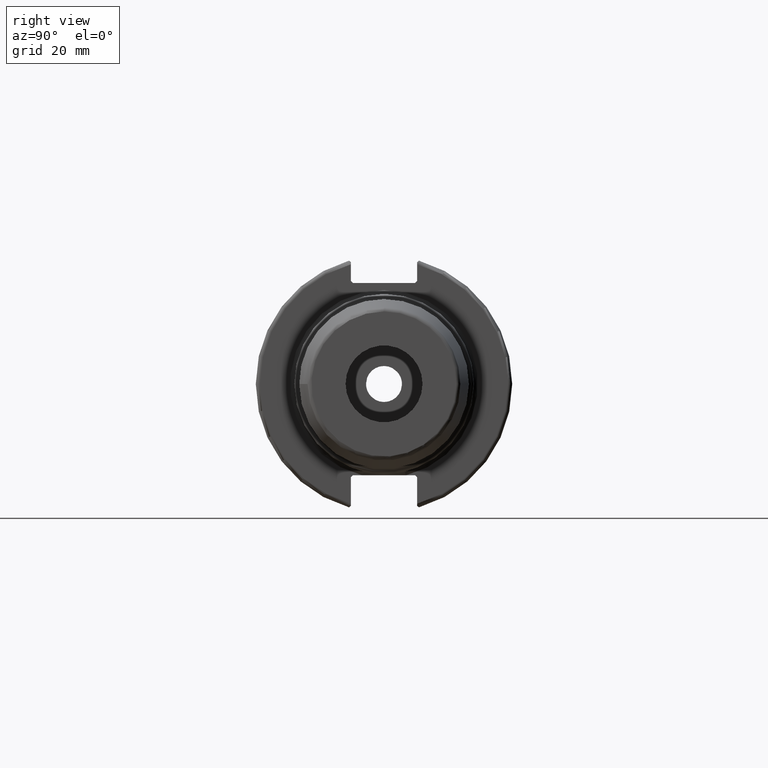
[diagram: clean part render]
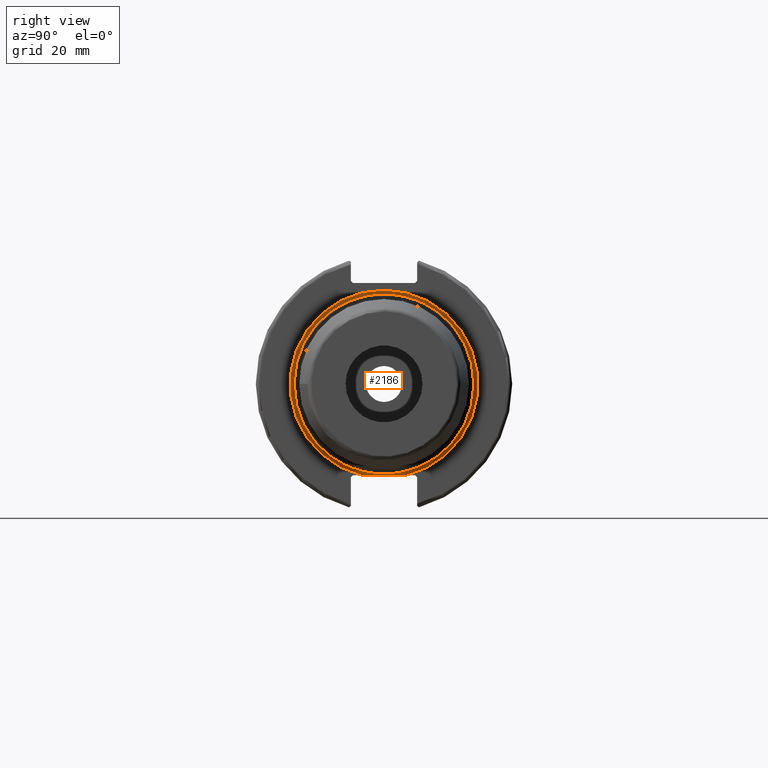
[diagram: same view with one face highlighted and labeled with its STEP entity id]
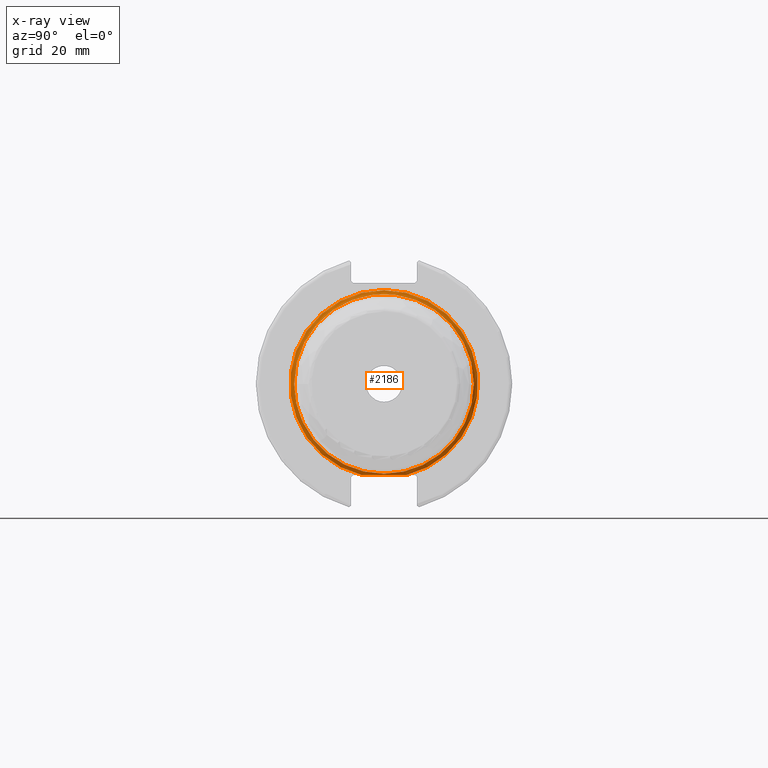
[diagram: x-ray of the same camera — body ghosted, the highlighted face saturated]
A machine part, right view. The second image highlights one B-rep face of the part: STEP entity #2186.
The next image is the same camera in x-ray: the body ghosted, the highlighted face saturated — about 0% of this face is hidden behind the body in this view.
In plain terms, the highlighted toroidal blend (fillet) surface has major radius 23.25 mm and minor (blend) radius 1 mm.
Its self-contained STEP definition (entity closure, byte-faithful):
#99=TOROIDAL_SURFACE('',#2399,23.25,1.);
#146=B_SPLINE_CURVE_WITH_KNOTS('',3,(#3604,#3605,#3606,#3607,#3608,#3609),
 .UNSPECIFIED.,.F.,.F.,(4,2,4),(1.72596271882624,2.07497455326111,2.23850423752741),
 .UNSPECIFIED.);
#147=B_SPLINE_CURVE_WITH_KNOTS('',3,(#3612,#3613,#3614,#3615,#3616,#3617),
 .UNSPECIFIED.,.F.,.F.,(4,2,4),(1.21342120012506,1.37695088439136,1.72596271882624),
 .UNSPECIFIED.);
#200=FACE_OUTER_BOUND('',#312,.T.);
#312=EDGE_LOOP('',(#1603,#1604,#1605,#1606,#1607,#1608,#1609,#1610));
#701=CIRCLE('',#2396,22.25);
#702=CIRCLE('',#2397,22.25);
#703=CIRCLE('',#2398,22.25);
#704=CIRCLE('',#2400,1.);
#705=CIRCLE('',#2401,23.25);
#877=VERTEX_POINT('',#3593);
#878=VERTEX_POINT('',#3595);
#879=VERTEX_POINT('',#3597);
#880=VERTEX_POINT('',#3601);
#881=VERTEX_POINT('',#3603);
#882=VERTEX_POINT('',#3610);
#1155=EDGE_CURVE('',#878,#877,#701,.T.);
#1156=EDGE_CURVE('',#879,#878,#702,.T.);
#1157=EDGE_CURVE('',#877,#879,#703,.T.);
#1158=EDGE_CURVE('',#878,#880,#704,.T.);
#1159=EDGE_CURVE('',#881,#880,#146,.F.);
#1160=EDGE_CURVE('',#881,#882,#705,.T.);
#1161=EDGE_CURVE('',#880,#882,#147,.F.);
#1603=ORIENTED_EDGE('',*,*,#1156,.T.);
#1604=ORIENTED_EDGE('',*,*,#1158,.T.);
#1605=ORIENTED_EDGE('',*,*,#1159,.F.);
#1606=ORIENTED_EDGE('',*,*,#1160,.T.);
#1607=ORIENTED_EDGE('',*,*,#1161,.F.);
#1608=ORIENTED_EDGE('',*,*,#1158,.F.);
#1609=ORIENTED_EDGE('',*,*,#1155,.T.);
#1610=ORIENTED_EDGE('',*,*,#1157,.T.);
#2186=ADVANCED_FACE('',(#200),#99,.F.);
#2396=AXIS2_PLACEMENT_3D('',#3596,#2826,#2827);
#2397=AXIS2_PLACEMENT_3D('',#3598,#2828,#2829);
#2398=AXIS2_PLACEMENT_3D('',#3599,#2830,#2831);
#2399=AXIS2_PLACEMENT_3D('',#3600,#2832,#2833);
#2400=AXIS2_PLACEMENT_3D('',#3602,#2834,#2835);
#2401=AXIS2_PLACEMENT_3D('',#3611,#2836,#2837);
#2826=DIRECTION('center_axis',(-1.,0.,0.));
#2827=DIRECTION('ref_axis',(0.,-1.,-1.22464679914735E-16));
#2828=DIRECTION('center_axis',(-1.,0.,0.));
#2829=DIRECTION('ref_axis',(0.,-1.,-1.22464679914735E-16));
#2830=DIRECTION('center_axis',(-1.,0.,0.));
#2831=DIRECTION('ref_axis',(0.,-1.,-1.22464679914735E-16));
#2832=DIRECTION('center_axis',(-1.,0.,0.));
#2833=DIRECTION('ref_axis',(0.,0.,1.));
#2834=DIRECTION('center_axis',(0.,-1.,1.22464679914735E-16));
#2835=DIRECTION('ref_axis',(0.,-1.22464679914735E-16,-1.));
#2836=DIRECTION('center_axis',(1.,0.,0.));
#2837=DIRECTION('ref_axis',(0.,-1.,-1.22464679914735E-16));
#3593=CARTESIAN_POINT('',(20.05,-22.25,-2.72483912810286E-15));
#3595=CARTESIAN_POINT('',(20.05,-2.72483912810286E-15,-22.25));
#3596=CARTESIAN_POINT('Origin',(20.05,0.,0.));
#3597=CARTESIAN_POINT('',(20.05,22.25,0.));
#3598=CARTESIAN_POINT('Origin',(20.05,0.,0.));
#3599=CARTESIAN_POINT('Origin',(20.05,0.,0.));
#3600=CARTESIAN_POINT('Origin',(20.05,0.,0.));
#3601=CARTESIAN_POINT('',(19.2900657923215,-1.52262876111465E-15,-22.6));
#3602=CARTESIAN_POINT('Origin',(20.05,-2.8473038080176E-15,-23.25));
#3603=CARTESIAN_POINT('',(19.05,5.45916660306312,-22.6));
#3604=CARTESIAN_POINT('Ctrl Pts',(19.2900657923215,-4.16333634234434E-16,
-22.6));
#3605=CARTESIAN_POINT('Ctrl Pts',(19.2900657923215,1.16337278144958,-22.6));
#3606=CARTESIAN_POINT('Ctrl Pts',(19.1815308025276,2.55519472595254,-22.6));
#3607=CARTESIAN_POINT('Ctrl Pts',(19.0793249412955,4.26060658551474,-22.6));
#3608=CARTESIAN_POINT('Ctrl Pts',(19.05,4.9140676555088,-22.6));
#3609=CARTESIAN_POINT('Ctrl Pts',(19.05,5.45916660306312,-22.6));
#3610=CARTESIAN_POINT('',(19.05,-5.45916660306312,-22.6));
#3611=CARTESIAN_POINT('Origin',(19.05,0.,0.));
#3612=CARTESIAN_POINT('Ctrl Pts',(19.05,-5.45916660306312,-22.6));
#3613=CARTESIAN_POINT('Ctrl Pts',(19.05,-4.9140676555088,-22.6));
#3614=CARTESIAN_POINT('Ctrl Pts',(19.0793249412955,-4.26060658551474,-22.6));
#3615=CARTESIAN_POINT('Ctrl Pts',(19.1815308025276,-2.55519472595254,-22.6));
#3616=CARTESIAN_POINT('Ctrl Pts',(19.2900657923215,-1.16337278144958,-22.6));
#3617=CARTESIAN_POINT('Ctrl Pts',(19.2900657923215,5.55111512312578E-16,
-22.6));